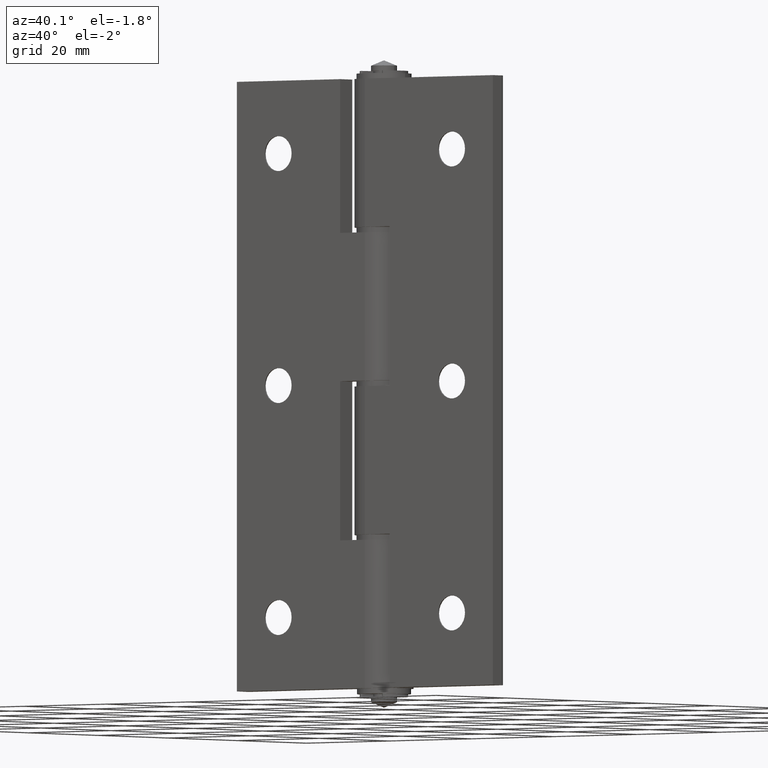
[diagram: clean part render]
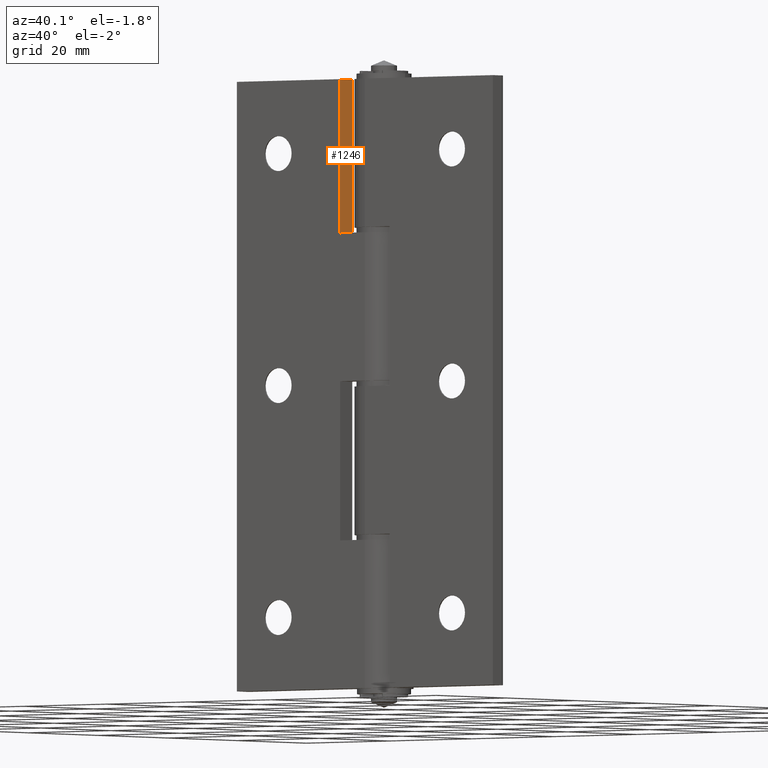
[diagram: same view with one face highlighted and labeled with its STEP entity id]
A machine part, auxiliary view. The second image highlights one B-rep face of the part: STEP entity #1246.
In plain terms, the highlighted planar face has unit normal (-1, -0, 0).
Its self-contained STEP definition (entity closure, byte-faithful):
#84=LINE('',#1966,#164);
#86=LINE('',#1974,#166);
#87=LINE('',#1976,#167);
#88=LINE('',#1977,#168);
#164=VECTOR('',#1548,3.5);
#166=VECTOR('',#1556,28.5);
#167=VECTOR('',#1557,3.5);
#168=VECTOR('',#1558,28.5);
#239=PLANE('',#1347);
#371=FACE_OUTER_BOUND('',#459,.T.);
#459=EDGE_LOOP('',(#951,#952,#953,#954));
#667=VERTEX_POINT('',#1962);
#669=VERTEX_POINT('',#1965);
#672=VERTEX_POINT('',#1973);
#673=VERTEX_POINT('',#1975);
#788=EDGE_CURVE('',#669,#667,#84,.T.);
#792=EDGE_CURVE('',#672,#667,#86,.T.);
#793=EDGE_CURVE('',#673,#672,#87,.T.);
#794=EDGE_CURVE('',#669,#673,#88,.T.);
#951=ORIENTED_EDGE('',*,*,#792,.F.);
#952=ORIENTED_EDGE('',*,*,#793,.F.);
#953=ORIENTED_EDGE('',*,*,#794,.F.);
#954=ORIENTED_EDGE('',*,*,#788,.T.);
#1246=ADVANCED_FACE('',(#371),#239,.F.);
#1347=AXIS2_PLACEMENT_3D('',#1972,#1554,#1555);
#1548=DIRECTION('',(-2.22044604925031E-16,1.,0.));
#1554=DIRECTION('center_axis',(-1.,-2.22044604925031E-16,1.89906570001672E-16));
#1555=DIRECTION('ref_axis',(1.77635683940025E-16,0.,1.));
#1556=DIRECTION('',(-1.89906570001672E-16,-4.76087266388424E-32,-1.));
#1557=DIRECTION('',(-2.22044604925031E-16,1.,0.));
#1558=DIRECTION('',(1.89906570001672E-16,2.04037399880753E-32,1.));
#1962=CARTESIAN_POINT('',(-5.99999999999999,3.5,-28.5));
#1965=CARTESIAN_POINT('',(-5.99999999999998,-5.55111512312578E-16,-28.5));
#1966=CARTESIAN_POINT('',(-5.99999999999999,3.5,-28.5));
#1972=CARTESIAN_POINT('Origin',(-5.99999999999999,3.5,-28.5));
#1973=CARTESIAN_POINT('',(-5.99999999999998,3.5,1.81807786750155E-29));
#1974=CARTESIAN_POINT('',(-5.99999999999998,3.5,-14.25));
#1975=CARTESIAN_POINT('',(-5.99999999999998,-5.55111512312578E-16,1.81807786750155E-29));
#1976=CARTESIAN_POINT('',(-5.99999999999998,4.5,0.));
#1977=CARTESIAN_POINT('',(-5.99999999999998,-5.55111512312578E-16,-14.25));